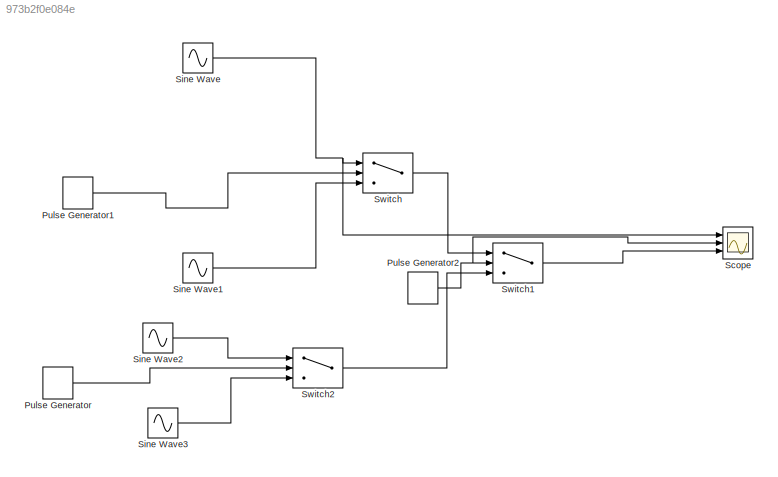
MODEL slx_973b2f0e084e
KIND model
CONFIG AbsTol = auto
CONFIG EnableMultiTasking = off
CONFIG FixedStep = auto
CONFIG MaxStep = auto
CONFIG MinStep = auto
CONFIG RelTol = 1e-3
CONFIG SampleTimeConstraint = Unconstrained
CONFIG Solver = VariableStepAuto
CONFIG SolverName = VariableStepAuto
CONFIG StartTime = 0.0
CONFIG StopTime = 10.0
BLOCK [DiscretePulseGenerator] Pulse Generator
  Ports = [0, 1]
  PulseType = Time based
  PulseWidth = 50
BLOCK [DiscretePulseGenerator] Pulse Generator1
  Ports = [0, 1]
  PulseType = Time based
  PulseWidth = 50
BLOCK [DiscretePulseGenerator] Pulse Generator2
  Period = 4
  Ports = [0, 1]
  PulseType = Time based
  PulseWidth = 50
BLOCK [Scope] Scope
  Floating = off
  NumInputPorts = 3
  Ports = [3]
  ScopeSpecificationString = Simulink.scopes.TimeScopeBlockCfg('CurrentConfiguration', extmgr.ConfigurationSet(extmgr.Configuration('Core','General UI',true),extmgr.Configuration('Core','Source UI',true),extmgr.Configuration('Sources','WiredSimulink',true),extmgr.Configuration('Visuals','Time Domain',true,'SerializedDisplays',{struct('MinYLimReal','-1.24753','MaxYLimReal','1.24753','YLabelReal','','MinYLimMag','0.00000','MaxY...<+2700ch>
BLOCK [Sin] Sine Wave
  Frequency = 2*pi*2
  Ports = [0, 1]
  SampleTime = 0.01
BLOCK [Sin] Sine Wave1
  Frequency = 2*pi*2
  Phase = pi
  Ports = [0, 1]
  SampleTime = 0.01
BLOCK [Sin] Sine Wave2
  Frequency = 2*pi*2
  Phase = pi/2
  Ports = [0, 1]
  SampleTime = 0.01
BLOCK [Sin] Sine Wave3
  Frequency = 2*pi*2
  Phase = 3*pi/2
  Ports = [0, 1]
  SampleTime = 0.01
BLOCK [Switch] Switch
  Criteria = u2 > Threshold
  InputSameDT = off
  SaturateOnIntegerOverflow = off
BLOCK [Switch] Switch1
  Criteria = u2 > Threshold
  InputSameDT = off
  SaturateOnIntegerOverflow = off
BLOCK [Switch] Switch2
  Criteria = u2 > Threshold
  InputSameDT = off
  SaturateOnIntegerOverflow = off
LINE Pulse Generator1:1 -> Switch:2
NET Pulse Generator2:1 -> Scope:2, Switch1:2
LINE Pulse Generator:1 -> Switch2:2
LINE Sine Wave1:1 -> Switch:3
LINE Sine Wave2:1 -> Switch2:1
LINE Sine Wave3:1 -> Switch2:3
NET Sine Wave:1 -> Scope:1, Switch:1
LINE Switch1:1 -> Scope:3
LINE Switch2:1 -> Switch1:3
LINE Switch:1 -> Switch1:1
note: NET lines group one-source signal fan-out (src -> all destinations, sorted); 1:1 wires keep LINE
